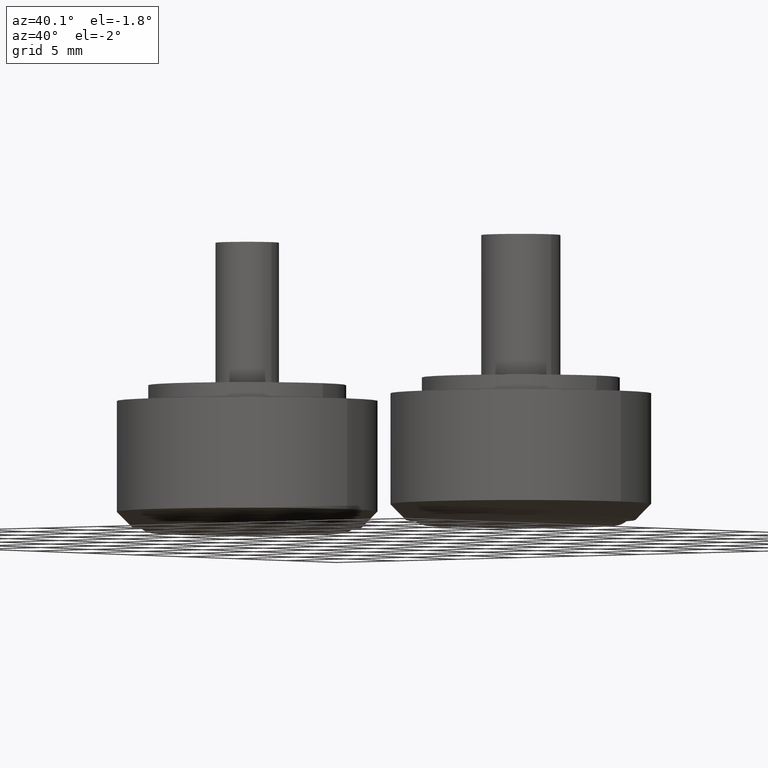
[diagram: clean part render]
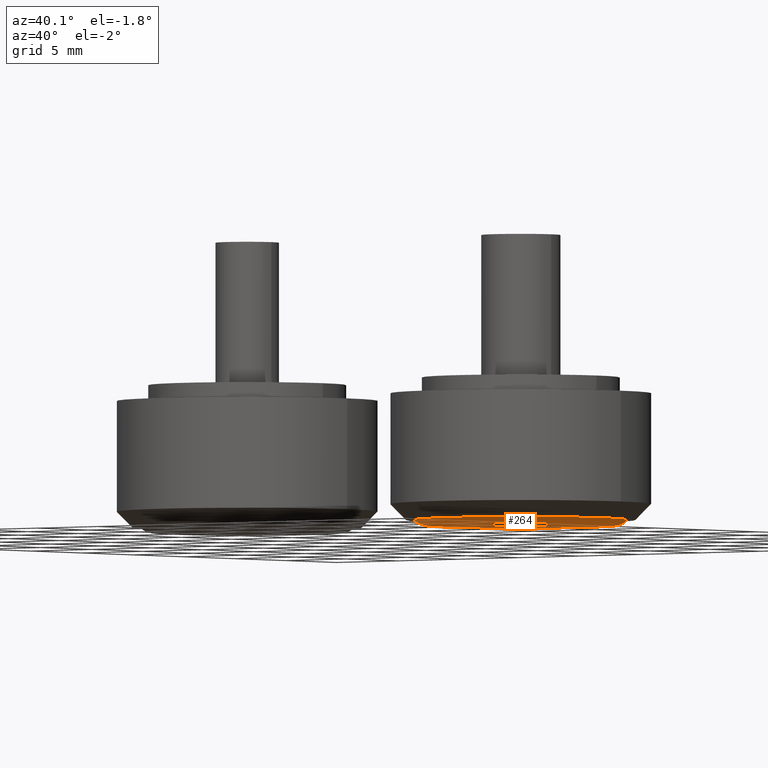
[diagram: same view with one face highlighted and labeled with its STEP entity id]
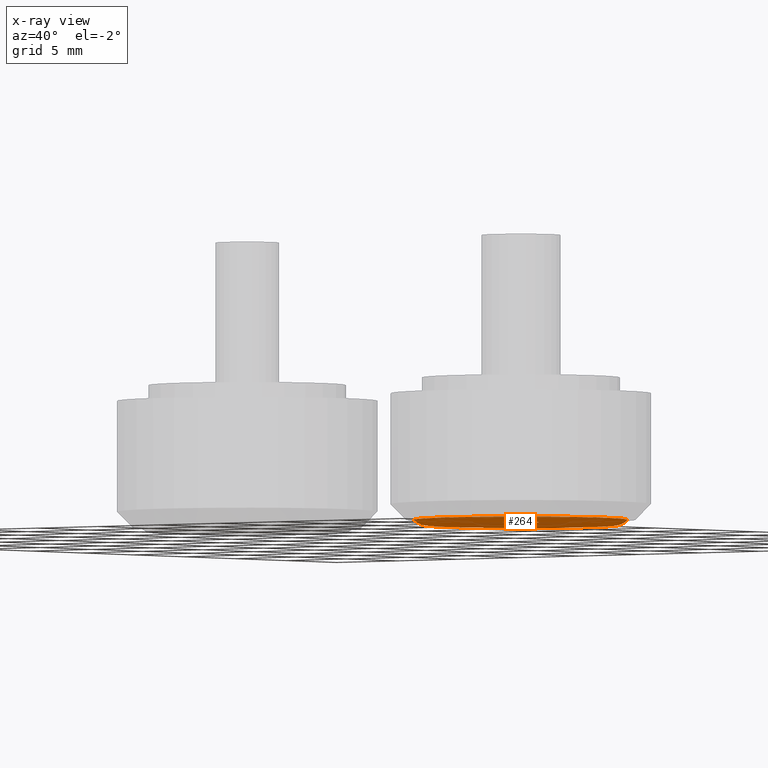
[diagram: x-ray of the same camera — body ghosted, the highlighted face saturated]
A machine part, auxiliary view. The second image highlights one B-rep face of the part: STEP entity #264.
The next image is the same camera in x-ray: the body ghosted, the highlighted face saturated — about 8% of this face is hidden behind the body in this view.
In plain terms, the highlighted toroidal blend (fillet) surface has major radius 6 mm and minor (blend) radius 1 mm.
Its self-contained STEP definition (entity closure, byte-faithful):
#32=TOROIDAL_SURFACE('',#307,6.,1.);
#57=FACE_BOUND('',#117,.T.);
#80=FACE_OUTER_BOUND('',#116,.T.);
#116=EDGE_LOOP('',(#226));
#117=EDGE_LOOP('',(#227));
#148=CIRCLE('',#308,5.25);
#149=CIRCLE('',#309,6.75);
#170=VERTEX_POINT('',#476);
#171=VERTEX_POINT('',#478);
#192=EDGE_CURVE('',#170,#170,#148,.T.);
#193=EDGE_CURVE('',#171,#171,#149,.T.);
#226=ORIENTED_EDGE('',*,*,#192,.F.);
#227=ORIENTED_EDGE('',*,*,#193,.F.);
#264=ADVANCED_FACE('',(#80,#57),#32,.T.);
#307=AXIS2_PLACEMENT_3D('',#475,#390,#391);
#308=AXIS2_PLACEMENT_3D('',#477,#392,#393);
#309=AXIS2_PLACEMENT_3D('',#479,#394,#395);
#390=DIRECTION('center_axis',(0.,0.,-1.));
#391=DIRECTION('ref_axis',(-1.,0.,0.));
#392=DIRECTION('center_axis',(0.,0.,-1.));
#393=DIRECTION('ref_axis',(1.,0.,0.));
#394=DIRECTION('center_axis',(0.,0.,1.));
#395=DIRECTION('ref_axis',(1.,0.,0.));
#475=CARTESIAN_POINT('Origin',(0.,0.,0.661437827766147));
#476=CARTESIAN_POINT('',(-5.25,6.4293956955236E-16,0.));
#477=CARTESIAN_POINT('Origin',(0.,0.,0.));
#478=CARTESIAN_POINT('',(-6.75,8.26636589424463E-16,0.));
#479=CARTESIAN_POINT('Origin',(0.,0.,0.));